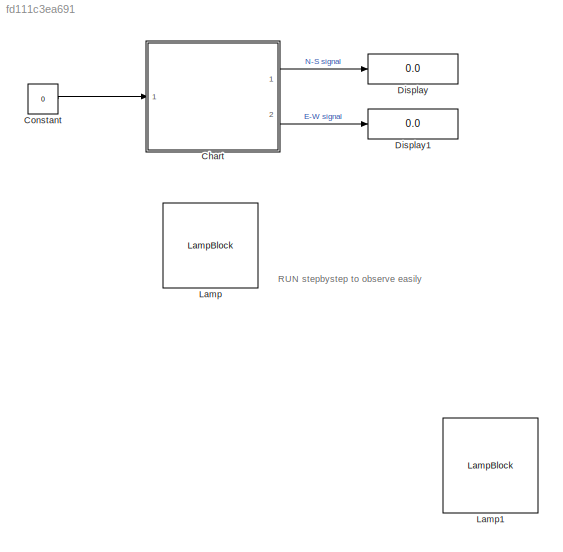
MODEL slx_fd111c3ea691
KIND model
CONFIG AbsTol = auto
CONFIG EnableMultiTasking = off
CONFIG FixedStep = auto
CONFIG MaxStep = auto
CONFIG MinStep = auto
CONFIG RelTol = 1e-3
CONFIG SampleTimeConstraint = Unconstrained
CONFIG Solver = VariableStepAuto
CONFIG SolverName = VariableStepAuto
CONFIG StartTime = 0.0
CONFIG StopTime = 1
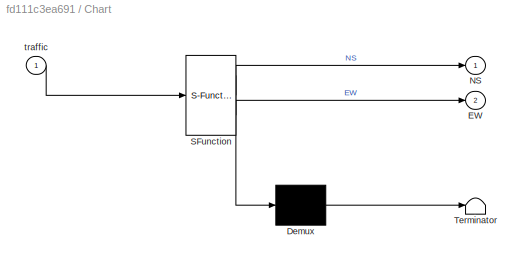
BLOCK [SubSystem] Chart
  ErrorFcn = Stateflow.Translate.translate
  PermitHierarchicalResolution = ExplicitOnly
  Ports = [1, 2]
  RequestExecContextInheritance = off
  SFBlockType = Chart
  TreatAsAtomicUnit = on
BLOCK [Demux] Chart/ Demux 
  Outputs = 1
  Ports = [1, 1]
BLOCK [S-Function] Chart/ SFunction 
  EnableBusSupport = on
  FunctionName = sf_sfun
  PortCounts = [1 3]
  Ports = [1, 3]
  SFcnIsStateOwnerBlock = off
  SFunctionDeploymentMode = off
  Tag = Stateflow S-Function 3
BLOCK [Terminator] Chart/ Terminator 
BLOCK [Outport] Chart/EW
  Port = 2
BLOCK [Outport] Chart/NS
BLOCK [Inport] Chart/traffic
BLOCK [Constant] Constant
  Value = 0
BLOCK [Display] Display
  Decimation = 1
  Ports = [1]
BLOCK [Display] Display1
  Decimation = 1
  Ports = [1]
BLOCK [LampBlock] Lamp
BLOCK [LampBlock] Lamp1
ANNOTATION (root): RUN stepbystep to observe easily
LINE Chart:1 -> Display:1
LINE Chart:2 -> Display1:1
LINE Constant:1 -> Chart:1
CHART Chart states=4 transitions=5
  STATE_LABEL 'stop\nNS = 1;\nEW= 3;'
  STATE_LABEL 'start_to_go\nNS = 2;\nEW = 1;'
  STATE_LABEL 'start_to_stop\nNS = 2;\nEW = 1;'
  STATE_LABEL 'go\nNS = 3;\nEW = 1;'
CHART  states=0 transitions=0
